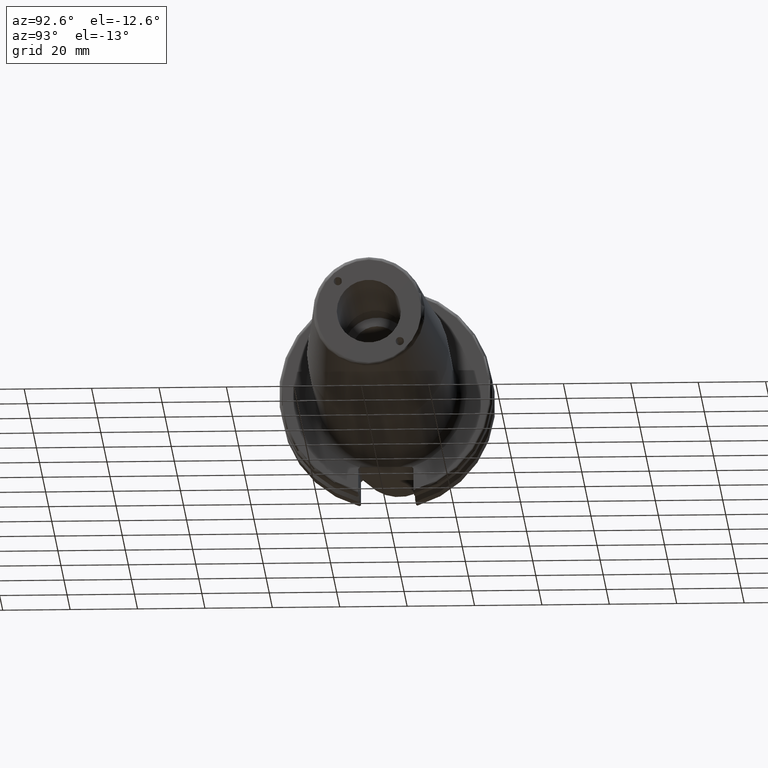
[diagram: clean part render]
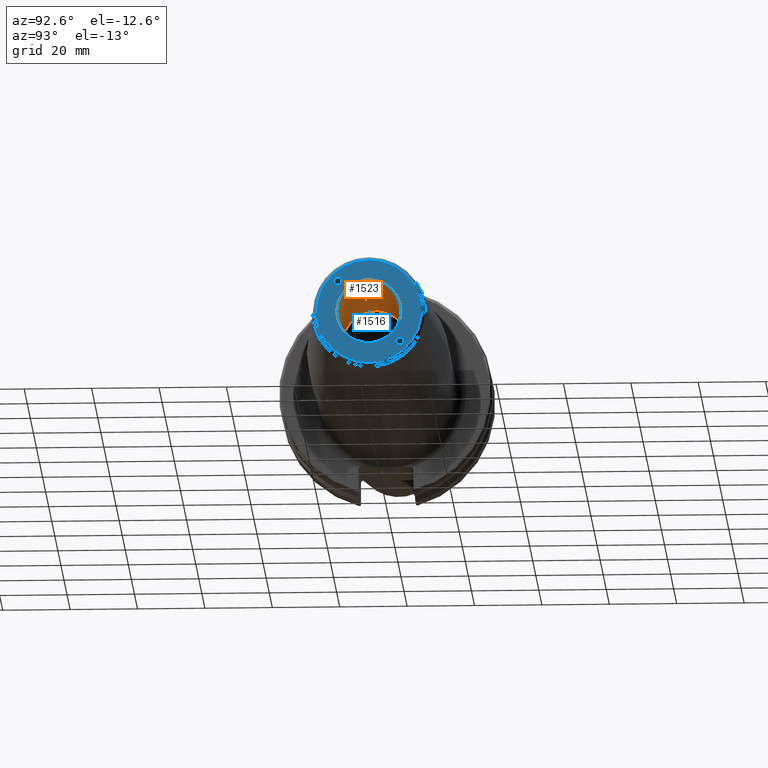
[diagram: same view with the hole feature highlighted: cylindrical wall and planar end face, labeled with their STEP entity ids]
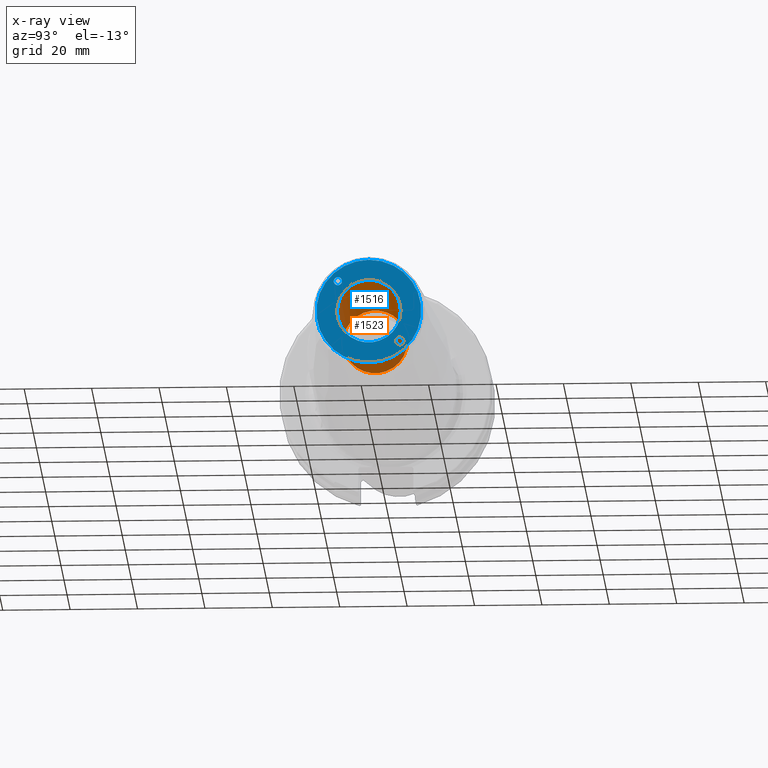
[diagram: x-ray of the same camera — body ghosted, the hole faces saturated]
A machine part, auxiliary view. The highlighted faces form one hole feature of diameter 19.05 mm: the cylindrical wall (entity #1523, orange) and its adjacent planar end face (entity #1516, blue) — they share a circular edge in the B-rep.
The next image is the same camera in x-ray (body ghosted, the hole faces saturated) — the bore reads through the body.
Wall:
#154=CYLINDRICAL_SURFACE('',#1653,9.525);
#190=FACE_OUTER_BOUND('',#283,.T.);
#283=EDGE_LOOP('',(#1083,#1084,#1085,#1086));
#380=LINE('',#2425,#472);
#472=VECTOR('',#1878,9.525);
#561=CIRCLE('',#1636,9.525);
#572=CIRCLE('',#1654,9.525);
#637=VERTEX_POINT('',#2287);
#655=VERTEX_POINT('',#2424);
#798=EDGE_CURVE('',#637,#637,#561,.T.);
#822=EDGE_CURVE('',#637,#655,#380,.T.);
#823=EDGE_CURVE('',#655,#655,#572,.T.);
#1083=ORIENTED_EDGE('',*,*,#798,.T.);
#1084=ORIENTED_EDGE('',*,*,#822,.T.);
#1085=ORIENTED_EDGE('',*,*,#823,.F.);
#1086=ORIENTED_EDGE('',*,*,#822,.F.);
#1523=ADVANCED_FACE('',(#190),#154,.F.);
#1636=AXIS2_PLACEMENT_3D('',#2288,#1837,#1838);
#1653=AXIS2_PLACEMENT_3D('',#2423,#1876,#1877);
#1654=AXIS2_PLACEMENT_3D('',#2426,#1879,#1880);
#1837=DIRECTION('center_axis',(1.,0.,0.));
#1838=DIRECTION('ref_axis',(0.,0.,-1.));
#1876=DIRECTION('center_axis',(1.,0.,0.));
#1877=DIRECTION('ref_axis',(0.,1.,0.));
#1878=DIRECTION('',(-1.,0.,0.));
#1879=DIRECTION('center_axis',(1.,0.,0.));
#1880=DIRECTION('ref_axis',(0.,0.,-1.));
#2287=CARTESIAN_POINT('',(130.,-9.525,-1.16647607618785E-15));
#2288=CARTESIAN_POINT('Origin',(130.,0.,0.));
#2423=CARTESIAN_POINT('Origin',(109.,0.,0.));
#2424=CARTESIAN_POINT('',(88.,-9.525,-1.16647607618785E-15));
#2425=CARTESIAN_POINT('',(109.,-9.525,-1.16647607618785E-15));
#2426=CARTESIAN_POINT('Origin',(88.,0.,0.));
End face:
#67=FACE_BOUND('',#272,.T.);
#68=FACE_BOUND('',#273,.T.);
#69=FACE_BOUND('',#274,.T.);
#84=PLANE('',#1635);
#129=ELLIPSE('',#1625,1.2302494347154,1.2295);
#130=ELLIPSE('',#1629,1.2302494347154,1.2295);
#183=FACE_OUTER_BOUND('',#271,.T.);
#271=EDGE_LOOP('',(#1042));
#272=EDGE_LOOP('',(#1043));
#273=EDGE_LOOP('',(#1044));
#274=EDGE_LOOP('',(#1045));
#557=CIRCLE('',#1631,15.5756095083418);
#561=CIRCLE('',#1636,9.525);
#630=VERTEX_POINT('',#2266);
#633=VERTEX_POINT('',#2275);
#634=VERTEX_POINT('',#2279);
#637=VERTEX_POINT('',#2287);
#788=EDGE_CURVE('',#630,#630,#129,.T.);
#792=EDGE_CURVE('',#633,#633,#130,.T.);
#794=EDGE_CURVE('',#634,#634,#557,.T.);
#798=EDGE_CURVE('',#637,#637,#561,.T.);
#1042=ORIENTED_EDGE('',*,*,#794,.F.);
#1043=ORIENTED_EDGE('',*,*,#788,.T.);
#1044=ORIENTED_EDGE('',*,*,#792,.T.);
#1045=ORIENTED_EDGE('',*,*,#798,.F.);
#1516=ADVANCED_FACE('',(#183,#67,#68,#69),#84,.T.);
#1625=AXIS2_PLACEMENT_3D('',#2267,#1812,#1813);
#1629=AXIS2_PLACEMENT_3D('',#2276,#1822,#1823);
#1631=AXIS2_PLACEMENT_3D('',#2280,#1827,#1828);
#1635=AXIS2_PLACEMENT_3D('',#2286,#1835,#1836);
#1636=AXIS2_PLACEMENT_3D('',#2288,#1837,#1838);
#1812=DIRECTION('center_axis',(-1.,0.,0.));
#1813=DIRECTION('ref_axis',(0.,-0.707106781186452,0.707106781186643));
#1822=DIRECTION('center_axis',(-1.,0.,0.));
#1823=DIRECTION('ref_axis',(0.,0.707106781186452,-0.707106781186643));
#1827=DIRECTION('center_axis',(-1.,0.,0.));
#1828=DIRECTION('ref_axis',(0.,-1.,1.83697019872103E-16));
#1835=DIRECTION('center_axis',(1.,0.,0.));
#1836=DIRECTION('ref_axis',(0.,0.,-1.));
#1837=DIRECTION('center_axis',(1.,0.,0.));
#1838=DIRECTION('ref_axis',(0.,0.,-1.));
#2266=CARTESIAN_POINT('',(130.,-7.96251338098311,9.1916387207445));
#2267=CARTESIAN_POINT('Origin',(130.,-9.19238815542512,9.19238815542512));
#2275=CARTESIAN_POINT('',(130.,7.96251338098311,-9.1916387207445));
#2276=CARTESIAN_POINT('Origin',(130.,9.19238815542512,-9.19238815542512));
#2279=CARTESIAN_POINT('',(130.,-1.90746203291599E-15,15.5756095083418));
#2280=CARTESIAN_POINT('Origin',(130.,0.,0.));
#2286=CARTESIAN_POINT('Origin',(130.,9.525,0.));
#2287=CARTESIAN_POINT('',(130.,-9.525,-1.16647607618785E-15));
#2288=CARTESIAN_POINT('Origin',(130.,0.,0.));